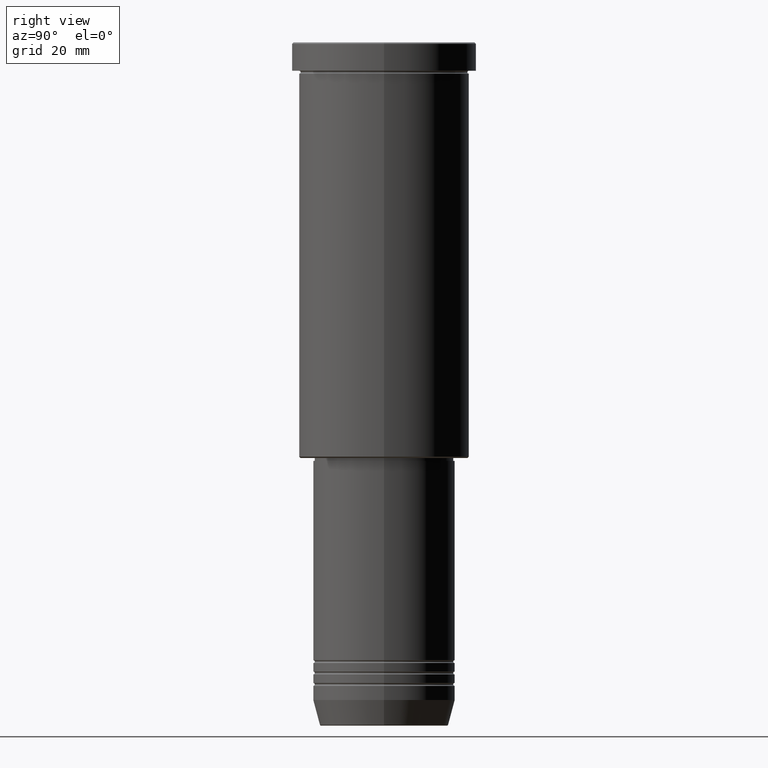
[diagram: clean part render]
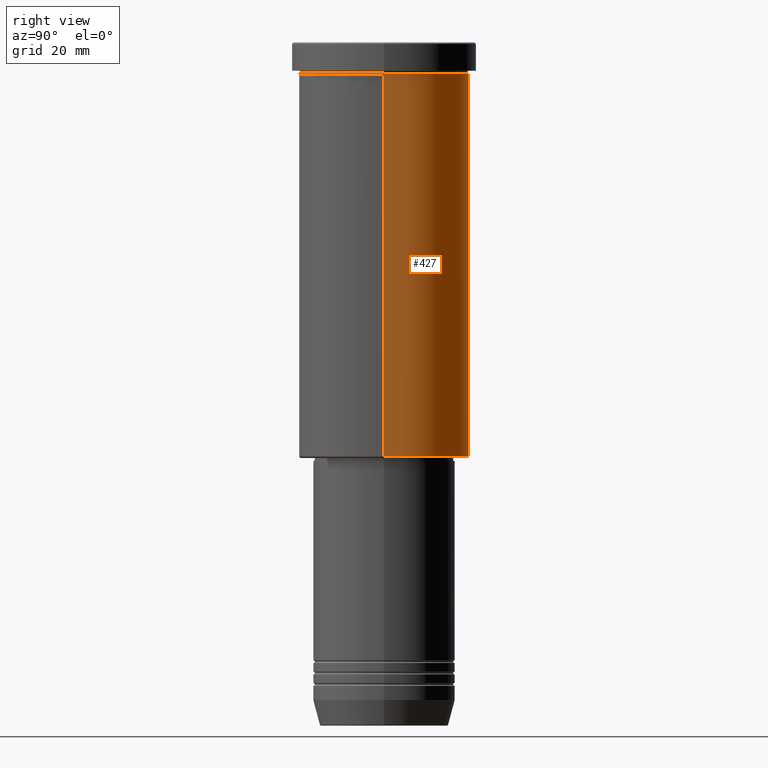
[diagram: same view with one face highlighted and labeled with its STEP entity id]
A machine part, right view. The second image highlights one B-rep face of the part: STEP entity #427.
In plain terms, the highlighted cylindrical surface (partial cylindrical patch) has radius 30 mm, axis along (-0, -0, 1).
Its self-contained STEP definition (entity closure, byte-faithful):
#55 = DIRECTION ( 'NONE',  ( -0.000000000000000000, -0.000000000000000000, 1.000000000000000000 ) ) ;
#58 = EDGE_CURVE ( 'NONE', #380, #141, #987, .T. ) ;
#122 = CIRCLE ( 'NONE', #950, 30.00000000000000000 ) ;
#133 = EDGE_CURVE ( 'NONE', #962, #295, #853, .T. ) ;
#141 = VERTEX_POINT ( 'NONE', #864 ) ;
#156 = VECTOR ( 'NONE', #1177, 1000.000000000000000 ) ;
#171 = DIRECTION ( 'NONE',  ( -0.000000000000000000, -0.000000000000000000, 1.000000000000000000 ) ) ;
#196 = CARTESIAN_POINT ( 'NONE',  ( 30.00000000000000000, 0.000000000000000000, 0.000000000000000000 ) ) ;
#295 = VERTEX_POINT ( 'NONE', #953 ) ;
#380 = VERTEX_POINT ( 'NONE', #413 ) ;
#413 = CARTESIAN_POINT ( 'NONE',  ( -30.00000000000000000, 3.673940397442059178E-15, -145.5000000000000000 ) ) ;
#423 = VECTOR ( 'NONE', #944, 1000.000000000000000 ) ;
#427 = ADVANCED_FACE ( 'NONE', ( #824 ), #994, .T. ) ;
#438 = DIRECTION ( 'NONE',  ( 1.000000000000000000, 0.000000000000000000, 0.000000000000000000 ) ) ;
#496 = EDGE_LOOP ( 'NONE', ( #576, #791, #613, #664 ) ) ;
#522 = CARTESIAN_POINT ( 'NONE',  ( 0.000000000000000000, 0.000000000000000000, -10.99999999999999289 ) ) ;
#540 = DIRECTION ( 'NONE',  ( 1.000000000000000000, 0.000000000000000000, 0.000000000000000000 ) ) ;
#576 = ORIENTED_EDGE ( 'NONE', *, *, #700, .T. ) ;
#593 = DIRECTION ( 'NONE',  ( -1.000000000000000000, 0.000000000000000000, 0.000000000000000000 ) ) ;
#613 = ORIENTED_EDGE ( 'NONE', *, *, #872, .F. ) ;
#615 = CARTESIAN_POINT ( 'NONE',  ( 0.000000000000000000, 0.000000000000000000, 0.000000000000000000 ) ) ;
#664 = ORIENTED_EDGE ( 'NONE', *, *, #133, .F. ) ;
#700 = EDGE_CURVE ( 'NONE', #962, #380, #740, .T. ) ;
#740 = CIRCLE ( 'NONE', #1178, 30.00000000000000000 ) ;
#791 = ORIENTED_EDGE ( 'NONE', *, *, #58, .T. ) ;
#822 = CARTESIAN_POINT ( 'NONE',  ( 30.00000000000000000, 0.000000000000000000, -145.5000000000000000 ) ) ;
#824 = FACE_OUTER_BOUND ( 'NONE', #496, .T. ) ;
#853 = LINE ( 'NONE', #196, #423 ) ;
#860 = AXIS2_PLACEMENT_3D ( 'NONE', #615, #171, #438 ) ;
#864 = CARTESIAN_POINT ( 'NONE',  ( -30.00000000000000000, 3.673940397442059178E-15, -10.99999999999999289 ) ) ;
#872 = EDGE_CURVE ( 'NONE', #295, #141, #122, .T. ) ;
#908 = CARTESIAN_POINT ( 'NONE',  ( -30.00000000000000000, 3.673940397442059178E-15, 0.000000000000000000 ) ) ;
#944 = DIRECTION ( 'NONE',  ( -0.000000000000000000, -0.000000000000000000, 1.000000000000000000 ) ) ;
#950 = AXIS2_PLACEMENT_3D ( 'NONE', #522, #1089, #540 ) ;
#953 = CARTESIAN_POINT ( 'NONE',  ( 30.00000000000000000, 0.000000000000000000, -10.99999999999999289 ) ) ;
#961 = CARTESIAN_POINT ( 'NONE',  ( 0.000000000000000000, 0.000000000000000000, -145.5000000000000000 ) ) ;
#962 = VERTEX_POINT ( 'NONE', #822 ) ;
#987 = LINE ( 'NONE', #908, #156 ) ;
#994 = CYLINDRICAL_SURFACE ( 'NONE', #860, 30.00000000000000000 ) ;
#1089 = DIRECTION ( 'NONE',  ( -0.000000000000000000, -0.000000000000000000, 1.000000000000000000 ) ) ;
#1177 = DIRECTION ( 'NONE',  ( -0.000000000000000000, -0.000000000000000000, 1.000000000000000000 ) ) ;
#1178 = AXIS2_PLACEMENT_3D ( 'NONE', #961, #55, #593 ) ;